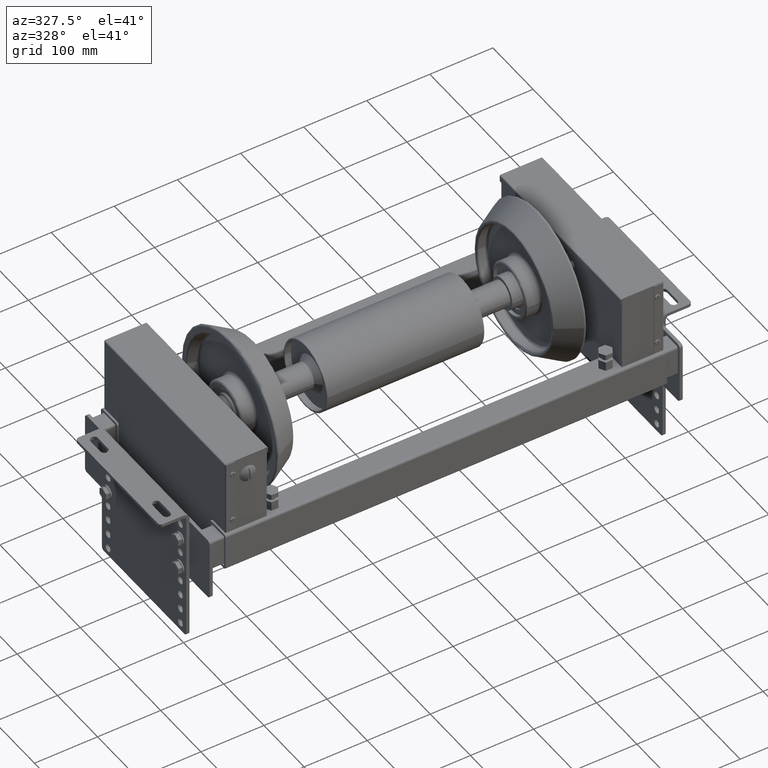
[diagram: clean part render]
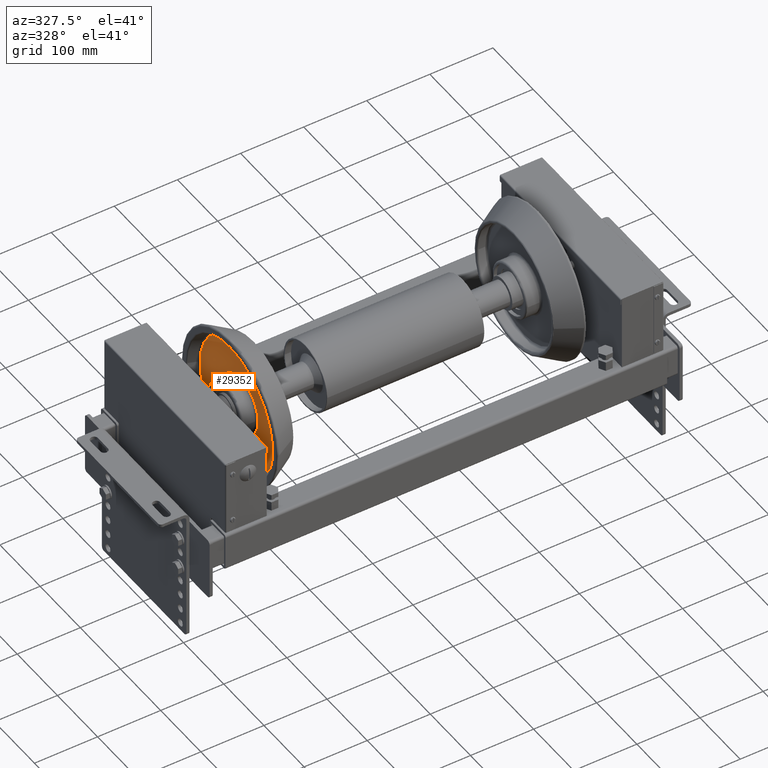
[diagram: same view with one face highlighted and labeled with its STEP entity id]
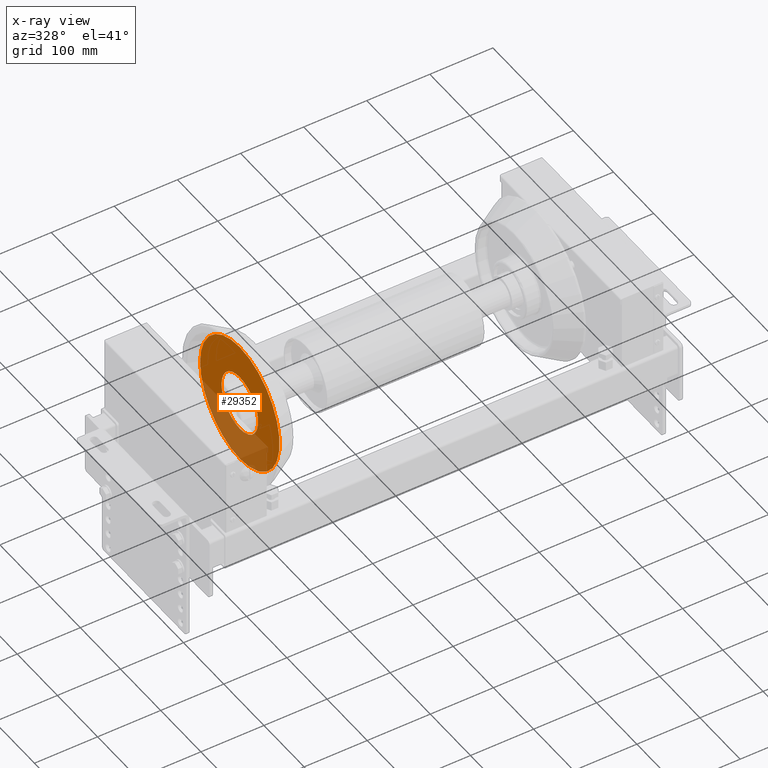
[diagram: x-ray of the same camera — body ghosted, the highlighted face saturated]
A machine part, auxiliary view. The second image highlights one B-rep face of the part: STEP entity #29352.
The next image is the same camera in x-ray: the body ghosted, the highlighted face saturated — about 34% of this face is hidden behind the body in this view.
In plain terms, the highlighted planar face has unit normal (-1, 0, 0).
Its self-contained STEP definition (entity closure, byte-faithful):
#28117=CARTESIAN_POINT('',(2.999999999999972,0.0,-45.500000000000000));
#28118=VERTEX_POINT('',#28117);
#28126=CARTESIAN_POINT('',(2.999999999999972,45.500000000000000,0.0));
#28127=VERTEX_POINT('',#28126);
#28128=CARTESIAN_POINT('',(2.999999999999972,0.0,0.0));
#28129=DIRECTION('',(1.0,0.0,0.0));
#28130=DIRECTION('',(0.0,1.0,0.0));
#28131=AXIS2_PLACEMENT_3D('',#28128,#28129,#28130);
#28132=CIRCLE('',#28131,45.500000000000000);
#28133=EDGE_CURVE('',#28118,#28127,#28132,.T.);
#28135=CARTESIAN_POINT('',(2.999999999999972,-5.572143E-015,45.500000000000000));
#28136=VERTEX_POINT('',#28135);
#28137=CARTESIAN_POINT('',(2.999999999999972,0.0,0.0));
#28138=DIRECTION('',(1.0,0.0,0.0));
#28139=DIRECTION('',(0.0,1.0,0.0));
#28140=AXIS2_PLACEMENT_3D('',#28137,#28138,#28139);
#28141=CIRCLE('',#28140,45.500000000000000);
#28142=EDGE_CURVE('',#28127,#28136,#28141,.T.);
#28219=CARTESIAN_POINT('',(3.0,0.0,-98.711883402845388));
#28220=VERTEX_POINT('',#28219);
#28246=CARTESIAN_POINT('',(3.0,-1.208872E-014,98.711883402845388));
#28247=VERTEX_POINT('',#28246);
#28255=CARTESIAN_POINT('',(3.0,98.711883402845388,0.0));
#28256=VERTEX_POINT('',#28255);
#28257=CARTESIAN_POINT('',(3.0,0.0,0.0));
#28258=DIRECTION('',(1.0,0.0,0.0));
#28259=DIRECTION('',(0.0,1.0,0.0));
#28260=AXIS2_PLACEMENT_3D('',#28257,#28258,#28259);
#28261=CIRCLE('',#28260,98.711883402845388);
#28262=EDGE_CURVE('',#28256,#28247,#28261,.T.);
#28264=CARTESIAN_POINT('',(3.0,0.0,0.0));
#28265=DIRECTION('',(1.0,0.0,0.0));
#28266=DIRECTION('',(0.0,1.0,0.0));
#28267=AXIS2_PLACEMENT_3D('',#28264,#28265,#28266);
#28268=CIRCLE('',#28267,98.711883402845388);
#28269=EDGE_CURVE('',#28220,#28256,#28268,.T.);
#29318=CARTESIAN_POINT('',(3.0,0.0,0.0));
#29319=DIRECTION('',(1.0,0.0,0.0));
#29320=DIRECTION('',(0.0,1.0,0.0));
#29321=AXIS2_PLACEMENT_3D('',#29318,#29319,#29320);
#29322=CIRCLE('',#29321,98.711883402845388);
#29323=EDGE_CURVE('',#28247,#28220,#29322,.T.);
#29331=CARTESIAN_POINT('',(2.999999999999986,72.105941701422694,0.0));
#29332=DIRECTION('',(1.0,0.0,0.0));
#29333=DIRECTION('',(0.0,0.0,-1.0));
#29334=AXIS2_PLACEMENT_3D('',#29331,#29332,#29333);
#29335=PLANE('',#29334);
#29336=ORIENTED_EDGE('',*,*,#28262,.T.);
#29337=ORIENTED_EDGE('',*,*,#29323,.T.);
#29338=ORIENTED_EDGE('',*,*,#28269,.T.);
#29339=EDGE_LOOP('',(#29336,#29337,#29338));
#29340=FACE_OUTER_BOUND('',#29339,.T.);
#29341=ORIENTED_EDGE('',*,*,#28142,.F.);
#29342=ORIENTED_EDGE('',*,*,#28133,.F.);
#29343=CARTESIAN_POINT('',(2.999999999999972,0.0,0.0));
#29344=DIRECTION('',(1.0,0.0,0.0));
#29345=DIRECTION('',(0.0,1.0,0.0));
#29346=AXIS2_PLACEMENT_3D('',#29343,#29344,#29345);
#29347=CIRCLE('',#29346,45.500000000000000);
#29348=EDGE_CURVE('',#28136,#28118,#29347,.T.);
#29349=ORIENTED_EDGE('',*,*,#29348,.F.);
#29350=EDGE_LOOP('',(#29341,#29342,#29349));
#29351=FACE_BOUND('',#29350,.T.);
#29352=ADVANCED_FACE('',(#29340,#29351),#29335,.T.);